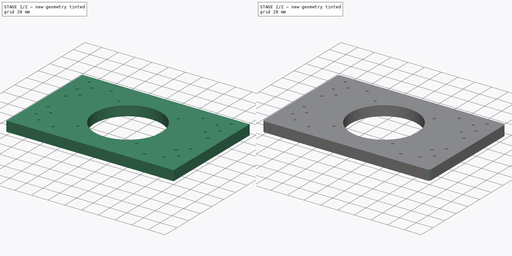
[diagram: build sequence overview — one tinted view per stage of 2, left to right]
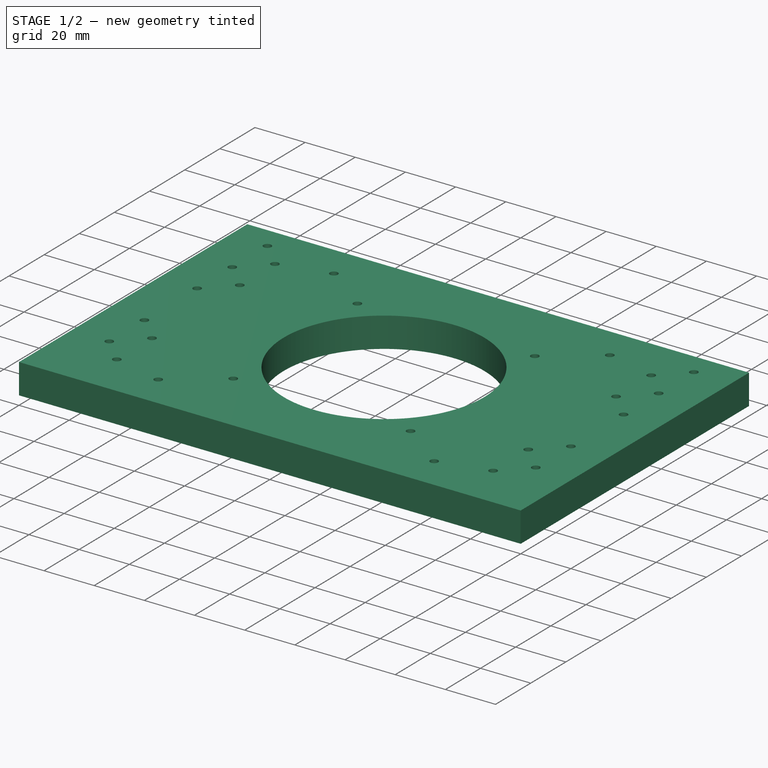
[diagram: stage 1 of 2 — iso view after this stage's code; geometry added in this stage tinted green]
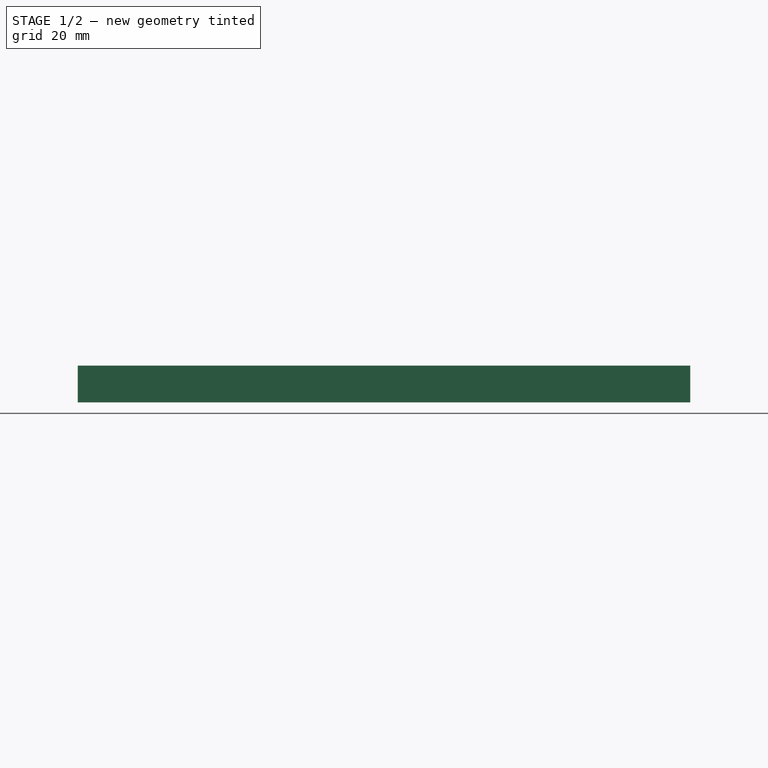
[diagram: stage 1 of 2 — front view after this stage's code; geometry added in this stage tinted green]
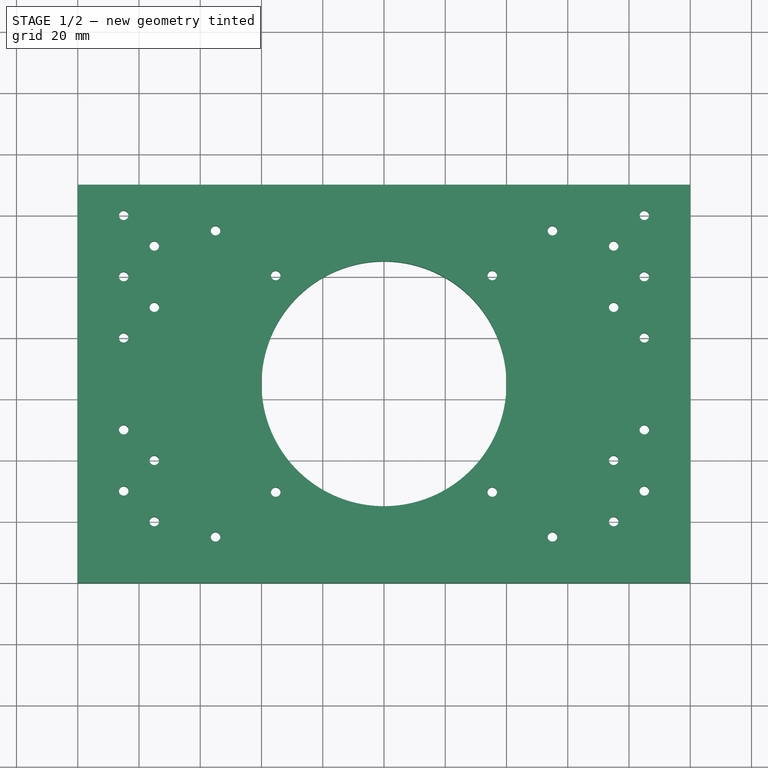
[diagram: stage 1 of 2 — top view after this stage's code; geometry added in this stage tinted green]
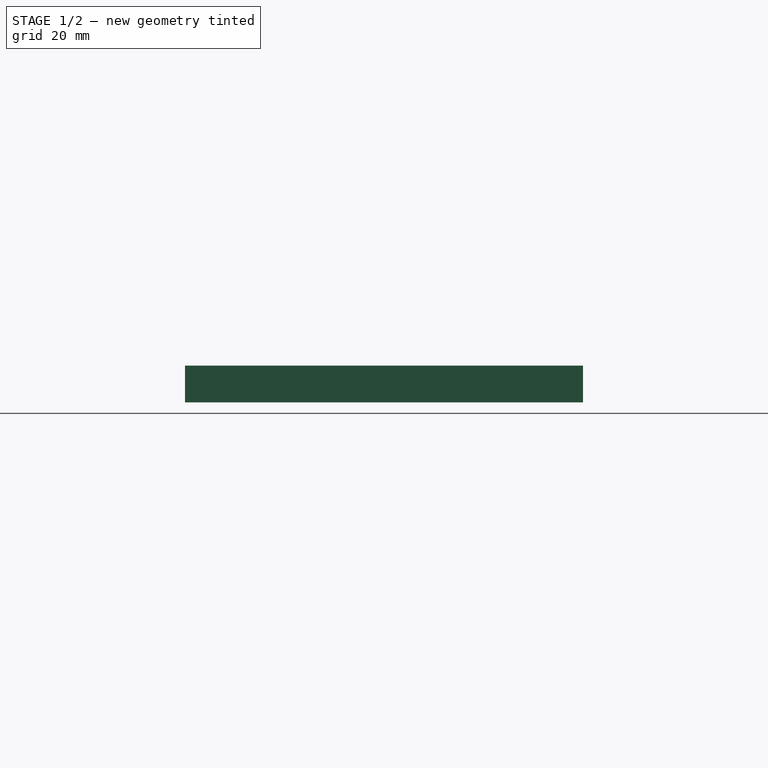
[diagram: stage 1 of 2 — right view after this stage's code; geometry added in this stage tinted green]
FCSTD DOCUMENT  (FreeCAD 0.19R24276 (Git))
Label: Plate_200x130_12_bear_support_d80_v2
License: All rights reserved
LicenseURL: http://en.wikipedia.org/wiki/All_rights_reserved
objects: Sketcher::SketchObject×1, PartDesign::Pad×1, PartDesign::Fillet×1, PartDesign::Body×1
note: 6 computed .brp shape members not serialized (recipe doc carries the construction recipe); baked Part::Feature solids carry a one-line shape summary decoded from their .brp

FEATURE [Sketcher::SketchObject] Sketch  label="Sketch_d80"
  FullyConstrained = false
  MapMode = 5
  Support = -> [XY_Plane]
  sketch-geometry (70):
    g0: LineSegment StartX=0 StartY=0 StartZ=0 EndX=200 EndY=0 EndZ=0
    g1: LineSegment StartX=200 StartY=0 StartZ=0 EndX=200 EndY=130 EndZ=0
    g2: LineSegment StartX=200 StartY=130 StartZ=0 EndX=0 EndY=130 EndZ=0
    g3: LineSegment StartX=0 StartY=130 StartZ=0 EndX=0 EndY=0 EndZ=0
    g4: Circle CenterX=100 CenterY=65 CenterZ=0 NormalX=0 NormalY=0 NormalZ=1 AngleXU=0 Radius=40
    g5: Circle CenterX=45 CenterY=115 CenterZ=0 NormalX=0 NormalY=0 NormalZ=1 AngleXU=0 Radius=1.5625
    g6: Circle CenterX=45 CenterY=15 CenterZ=0 NormalX=0 NormalY=0 NormalZ=1 AngleXU=0 Radius=1.5625
    g7: Circle CenterX=155 CenterY=115 CenterZ=0 NormalX=0 NormalY=0 NormalZ=1 AngleXU=0 Radius=1.5625
    g8: Circle CenterX=155 CenterY=15 CenterZ=0 NormalX=0 NormalY=0 NormalZ=1 AngleXU=0 Radius=1.5625
    g9: LineSegment StartX=45 StartY=15 StartZ=0 EndX=45 EndY=115 EndZ=0
    g10: LineSegment StartX=45 StartY=15 StartZ=0 EndX=155 EndY=15 EndZ=0
    g11: LineSegment StartX=155 StartY=115 StartZ=0 EndX=155 EndY=15 EndZ=0
    g12: LineSegment StartX=45 StartY=115 StartZ=0 EndX=155 EndY=115 EndZ=0
    g13: Circle CenterX=185 CenterY=30 CenterZ=0 NormalX=0 NormalY=0 NormalZ=1 AngleXU=0 Radius=1.5625
    g14: LineSegment StartX=185 StartY=105 StartZ=0 EndX=185 EndY=30 EndZ=0
    g15: Circle CenterX=100 CenterY=65 CenterZ=0 NormalX=0 NormalY=0 NormalZ=1 AngleXU=0 Radius=50
    g16: LineSegment StartX=100 StartY=65 StartZ=0 EndX=135.355 EndY=100.355 EndZ=0
    g17: LineSegment StartX=100 StartY=65 StartZ=0 EndX=64.6447 EndY=29.6447 EndZ=0
    g18: LineSegment StartX=100 StartY=65 StartZ=0 EndX=135.355 EndY=29.6447 EndZ=0
    g19: Circle CenterX=135.355 CenterY=100.355 CenterZ=0 NormalX=0 NormalY=0 NormalZ=1 AngleXU=0 Radius=1.5625
    g20: Circle CenterX=64.6447 CenterY=29.6447 CenterZ=0 NormalX=0 NormalY=0 NormalZ=1 AngleXU=0 Radius=1.5625
    g21: LineSegment StartX=100 StartY=65 StartZ=0 EndX=64.6447 EndY=100.355 EndZ=0
    g22: Circle CenterX=64.6447 CenterY=100.355 CenterZ=0 NormalX=0 NormalY=0 NormalZ=1 AngleXU=0 Radius=1.5625
    g23: Circle CenterX=135.355 CenterY=29.6447 CenterZ=0 NormalX=0 NormalY=0 NormalZ=1 AngleXU=0 Radius=1.5625
    g24: LineSegment StartX=175 StartY=121.301 StartZ=0 EndX=175 EndY=20 EndZ=0
    g25: Circle CenterX=175 CenterY=20 CenterZ=0 NormalX=0 NormalY=0 NormalZ=1 AngleXU=0 Radius=1.5625
    g26: Circle CenterX=175 CenterY=40 CenterZ=0 NormalX=0 NormalY=0 NormalZ=1 AngleXU=0 Radius=1.5625
    g27: Circle CenterX=185 CenterY=50 CenterZ=0 NormalX=0 NormalY=0 NormalZ=1 AngleXU=0 Radius=1.5625
    g28: LineSegment StartX=100 StartY=65 StartZ=0 EndX=228.555 EndY=65 EndZ=0
    g29: Circle CenterX=175 CenterY=90 CenterZ=0 NormalX=0 NormalY=0 NormalZ=1 AngleXU=0 Radius=1.5625
    g30: Circle CenterX=175 CenterY=110 CenterZ=0 NormalX=0 NormalY=0 NormalZ=1 AngleXU=0 Radius=1.5625
    g31: Circle CenterX=185 CenterY=80 CenterZ=0 NormalX=0 NormalY=0 NormalZ=1 AngleXU=0 Radius=1.5625
    g32: Circle CenterX=185 CenterY=100 CenterZ=0 NormalX=0 NormalY=0 NormalZ=1 AngleXU=0 Radius=1.5625
    g33: LineSegment StartX=100 StartY=65 StartZ=0 EndX=100 EndY=146.994 EndZ=0
    g34: Circle CenterX=15 CenterY=30 CenterZ=0 NormalX=0 NormalY=0 NormalZ=1 AngleXU=0 Radius=1.5625
    g35: LineSegment StartX=15 StartY=105 StartZ=0 EndX=15 EndY=30 EndZ=0
    g36: LineSegment StartX=25 StartY=121.301 StartZ=0 EndX=25 EndY=20 EndZ=0
    g37: Circle CenterX=25 CenterY=20 CenterZ=0 NormalX=0 NormalY=0 NormalZ=1 AngleXU=0 Radius=1.5625
    g38: Circle CenterX=25 CenterY=40 CenterZ=0 NormalX=0 NormalY=0 NormalZ=1 AngleXU=0 Radius=1.5625
    g39: Circle CenterX=15 CenterY=50 CenterZ=0 NormalX=0 NormalY=0 NormalZ=1 AngleXU=0 Radius=1.5625
    g40: Circle CenterX=25 CenterY=90 CenterZ=0 NormalX=0 NormalY=0 NormalZ=1 AngleXU=0 Radius=1.5625
    g41: Circle CenterX=25 CenterY=110 CenterZ=0 NormalX=0 NormalY=0 NormalZ=1 AngleXU=0 Radius=1.5625
    g42: Circle CenterX=15 CenterY=80 CenterZ=0 NormalX=0 NormalY=0 NormalZ=1 AngleXU=0 Radius=1.5625
    g43: Circle CenterX=15 CenterY=100 CenterZ=0 NormalX=0 NormalY=0 NormalZ=1 AngleXU=0 Radius=1.5625
    g44: LineSegment StartX=64.6447 StartY=100.355 StartZ=0 EndX=135.355 EndY=100.355 EndZ=0
    g45: Circle CenterX=25 CenterY=180 CenterZ=0 NormalX=0 NormalY=0 NormalZ=1 AngleXU=0 Radius=1.5625
    g46: Circle CenterX=25 CenterY=160 CenterZ=0 NormalX=0 NormalY=0 NormalZ=1 AngleXU=0 Radius=1.5625
    g47: Circle CenterX=15 CenterY=190 CenterZ=0 NormalX=0 NormalY=0 NormalZ=1 AngleXU=0 Radius=1.5625
    g48: Circle CenterX=15 CenterY=170 CenterZ=0 NormalX=0 NormalY=0 NormalZ=1 AngleXU=0 Radius=1.5625
    g49: Circle CenterX=175 CenterY=180 CenterZ=0 NormalX=0 NormalY=0 NormalZ=1 AngleXU=0 Radius=1.5625
    g50: Circle CenterX=175 CenterY=160 CenterZ=0 NormalX=0 NormalY=0 NormalZ=1 AngleXU=0 Radius=1.5625
    g51: Circle CenterX=185 CenterY=190 CenterZ=0 NormalX=0 NormalY=0 NormalZ=1 AngleXU=0 Radius=1.5625
    g52: Circle CenterX=185 CenterY=170 CenterZ=0 NormalX=0 NormalY=0 NormalZ=1 AngleXU=0 Radius=1.5625
    g53: Circle CenterX=15 CenterY=120 CenterZ=0 NormalX=0 NormalY=0 NormalZ=1 AngleXU=0 Radius=1.5625
    g54: Circle CenterX=15 CenterY=150 CenterZ=0 NormalX=0 NormalY=0 NormalZ=1 AngleXU=0 Radius=1.5625
    g55: Circle CenterX=185 CenterY=120 CenterZ=0 NormalX=0 NormalY=0 NormalZ=1 AngleXU=0 Radius=1.5625
    g56: Circle CenterX=185 CenterY=150 CenterZ=0 NormalX=0 NormalY=0 NormalZ=1 AngleXU=0 Radius=1.5625
    g57: LineSegment StartX=40 StartY=130 StartZ=0 EndX=40 EndY=200 EndZ=0
    g58: LineSegment StartX=40 StartY=200 StartZ=0 EndX=0 EndY=200 EndZ=0
    g59: LineSegment StartX=0 StartY=130 StartZ=0 EndX=0 EndY=200 EndZ=0
    g60: LineSegment StartX=160 StartY=200 StartZ=0 EndX=200 EndY=200 EndZ=0
    g61: LineSegment StartX=160 StartY=130 StartZ=0 EndX=160 EndY=200 EndZ=0
    g62: LineSegment StartX=200 StartY=130 StartZ=0 EndX=200 EndY=200 EndZ=0
    g63: LineSegment StartX=0 StartY=0 StartZ=0 EndX=0 EndY=200 EndZ=0
    g64: LineSegment StartX=200 StartY=0 StartZ=0 EndX=200 EndY=200 EndZ=0
    g65: LineSegment StartX=0 StartY=200 StartZ=0 EndX=40 EndY=200 EndZ=0
    g66: LineSegment StartX=160 StartY=200 StartZ=0 EndX=200 EndY=200 EndZ=0
    g67: LineSegment StartX=40 StartY=200 StartZ=0 EndX=40 EndY=130 EndZ=0
    g68: LineSegment StartX=160 StartY=130 StartZ=0 EndX=160 EndY=200 EndZ=0
    g69: LineSegment StartX=40 StartY=130 StartZ=0 EndX=160 EndY=130 EndZ=0
  constraints (184):
    c: Coincident(g0,g1)
    c: Coincident(g1,g2)
    c: Coincident(g2,g3)
    c: Coincident(g3,g0)
    c: Horizontal(g0)
    c: Horizontal(g2)
    c: Vertical(g1)
    c: Vertical(g3)
    c: Coincident(g0,g-1)
    c: DistanceY(g1,g1) = 130
    c: DistanceX(g0,g0) = 200
    c: Symmetric(g2,g0,g4)
    c: Diameter(g4) = 80
    c: DistanceX(g0,g6) = 45
    c: Coincident(g9,g6)
    c: Coincident(g9,g5)
    c: Vertical(g9)
    c: Coincident(g10,g6)
    c: Coincident(g10,g8)
    c: Horizontal(g10)
    c: Coincident(g11,g7)
    c: Coincident(g11,g8)
    c: Vertical(g11)
    c: Coincident(g12,g5)
    c: Coincident(g12,g7)
    c: Horizontal(g12)
    c: Symmetric(g7,g6,g4)
    c: DistanceY(g0,g6) = 15
    c: Coincident(g14,g13)
    c: Vertical(g14)
    c: Equal(g5,g6)
    c: Equal(g5,g8)
    c: Equal(g5,g7)
    c: DistanceX(g13,g0) = 15
    c: Diameter(g15) = 100
    c: Coincident(g16,g4)
    c: Coincident(g17,g4)
    c: Coincident(g18,g4)
    c: Parallel(g17,g16)
    c: Angle(g17,g18) = 1.5708
    c: PointOnObject(g18,g15)
    c: PointOnObject(g17,g15)
    c: PointOnObject(g16,g15)
    c: Coincident(g19,g16)
    c: Coincident(g20,g17)
    c: Coincident(g21,g4)
    c: Parallel(g18,g21)
    c: PointOnObject(g21,g15)
    c: Coincident(g23,g18)
    c: Diameter(g23) = 3.125
    c: Equal(g23,g19)
    c: Equal(g23,g22)
    c: Equal(g23,g20)
    c: Vertical(g24)
    c: DistanceX(g24,g0) = 25
    c: DistanceY(g0,g13) = 30
    c: Coincident(g25,g24)
    c: Equal(g13,g25)
    c: DistanceY(g0,g24) = 20
    c: PointOnObject(g26,g24)
    c: Equal(g25,g26)
    c: DistanceY(g24,g26) = 20
    c: PointOnObject(g27,g14)
    c: Equal(g26,g27)
    c: DistanceY(g13,g27) = 20
    c: Coincident(g28,g4)
    c: Horizontal(g28)
    c: Equal(g32,g30)
    c: Equal(g30,g29)
    c: Equal(g29,g31)
    c: Coincident(g33,g4)
    c: Vertical(g33)
    c: Coincident(g35,g34)
    c: Vertical(g35)
    c: Vertical(g36)
    c: Coincident(g37,g36)
    c: Equal(g34,g37)
    c: PointOnObject(g38,g36)
    c: Equal(g37,g38)
    c: PointOnObject(g39,g35)
    c: Equal(g38,g39)
    c: Equal(g43,g41)
    c: Equal(g41,g40)
    c: Equal(g40,g42)
    c: Diameter(g25) = 3.125
    c: Equal(g31,g27)
    c: Equal(g41,g30)
    c: Equal(g40,g38)
    c: Equal(g41,g5)
    c: Coincident(g22,g21)
    c: Coincident(g15,g4)
    c: Coincident(g44,g22)
    c: Coincident(g44,g19)
    c: Horizontal(g44)
    c: Vertical(g31,g32)
    c: Vertical(g32,g27)
    c: Vertical(g26,g29)
    c: Vertical(g29,g30)
    c: DistanceY(g27,g31) = 30
    c: DistanceY(g31,g32) = 20
    c: DistanceY(g29,g30) = 20
    c: DistanceY(g31,g29) = 10
    c: Horizontal(g30,g41)
    c: Horizontal(g43,g32)
    c: Horizontal(g40,g29)
    c: Horizontal(g42,g31)
    c: Horizontal(g39,g27)
    c: Horizontal(g38,g26)
    c: Horizontal(g34,g13)
    c: Horizontal(g25,g37)
    c: DistanceX(g0,g34) = 15
    c: DistanceX(g0,g37) = 25
    c: Vertical(g39,g42)
    c: Vertical(g42,g43)
    c: Vertical(g38,g40)
    c: Vertical(g40,g41)
    c: Equal(g52,g50)
    c: Equal(g50,g49)
    c: Equal(g49,g51)
    c: Equal(g48,g46)
    c: Equal(g46,g45)
    c: Equal(g45,g47)
    c: Equal(g46,g50)
    c: Equal(g53,g43)
    c: Vertical(g43,g53)
    c: DistanceY(g43,g53) = 20
    c: Equal(g53,g54)
    c: Vertical(g53,g54)
    c: Vertical(g54,g48)
    c: Vertical(g48,g47)
    c: Vertical(g46,g45)
    c: Vertical(g40,g45)
    c: DistanceY(g53,g54) = 30
    c: DistanceY(g54,g48) = 20
    c: DistanceY(g48,g47) = 20
    c: DistanceY(g54,g46) = 10
    c: DistanceY(g46,g45) = 20
    c: Equal(g54,g46)
    c: Equal(g30,g55)
    c: Vertical(g55,g32)
    c: DistanceY(g30,g55) = 10
    c: Vertical(g50,g49)
    c: Vertical(g49,g30)
    c: Vertical(g55,g52)
    c: Vertical(g52,g51)
    c: Equal(g50,g56)
    c: Vertical(g56,g52)
    c: Horizontal(g54,g56)
    c: Horizontal(g46,g50)
    c: Horizontal(g48,g52)
    c: Horizontal(g45,g49)
    c: Horizontal(g47,g51)
    c: Vertical(g57)
    c: DistanceY(g45,g57) = 20
    c: Coincident(g58,g57)
    c: Horizontal(g58)
    c: Coincident(g59,g2)
    c: Coincident(g59,g58)
    c: Vertical(g59)
    c: PointOnObject(g57,g2)
    c: DistanceX(g58,g58) = 40
    c: Vertical(g61)
    c: Coincident(g60,g61)
    c: Horizontal(g60)
    c: Coincident(g62,g1)
    c: Coincident(g62,g60)
    c: Vertical(g62)
    c: Horizontal(g60,g57)
    c: Equal(g58,g60)
    c: Horizontal(g57,g61)
    c: Coincident(g63,g0)
    c: Coincident(g64,g0)
    c: Coincident(g64,g60)
    c: Coincident(g63,g58)
    c: Coincident(g65,g63)
    c: Coincident(g66,g60)
    c: Coincident(g64,g66)
    c: Coincident(g57,g65)
    c: Coincident(g67,g65)
    c: Coincident(g68,g61)
    c: Coincident(g69,g57)
    c: Coincident(g67,g69)
    c: Coincident(g69,g68)
    c: Coincident(g68,g66)
FEATURE [PartDesign::Pad] Pad  label="Pad_h12"
  Direction = (1,1,1)
  Length = 12
  Length2 = 100
  Profile = -> Sketch
  Type = 0
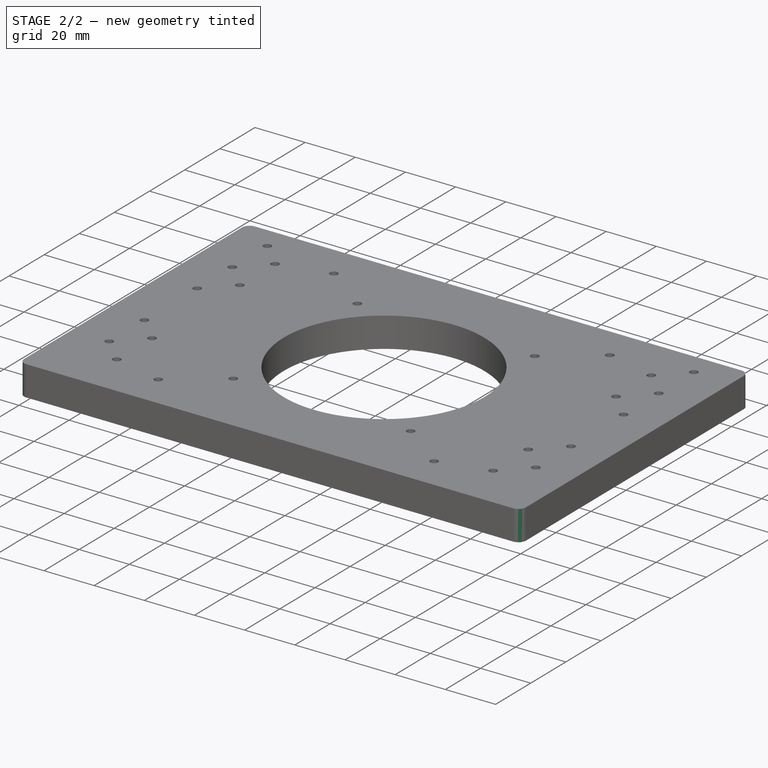
[diagram: stage 2 of 2 — iso view after this stage's code; geometry added in this stage tinted green]
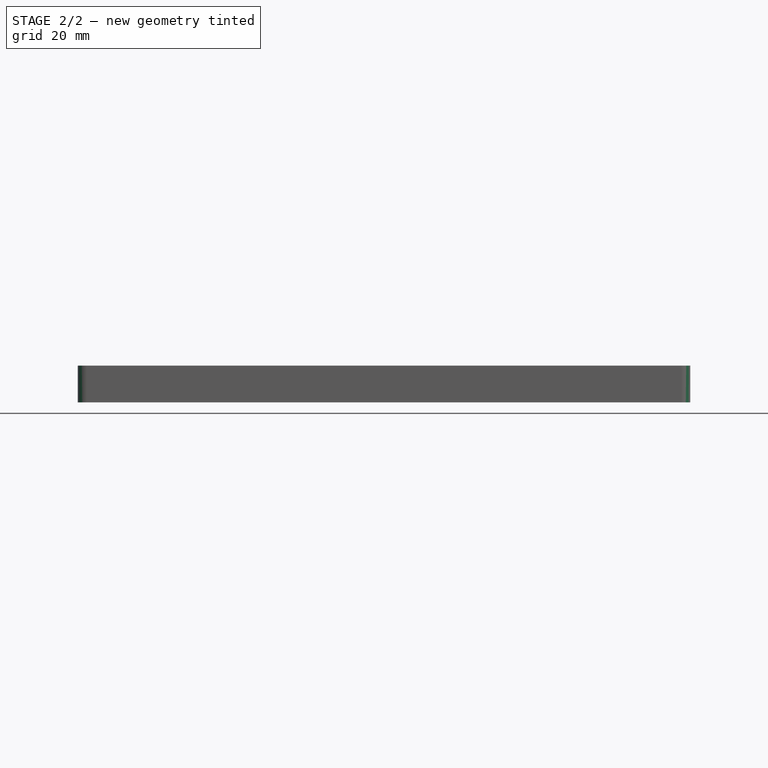
[diagram: stage 2 of 2 — front view after this stage's code; geometry added in this stage tinted green]
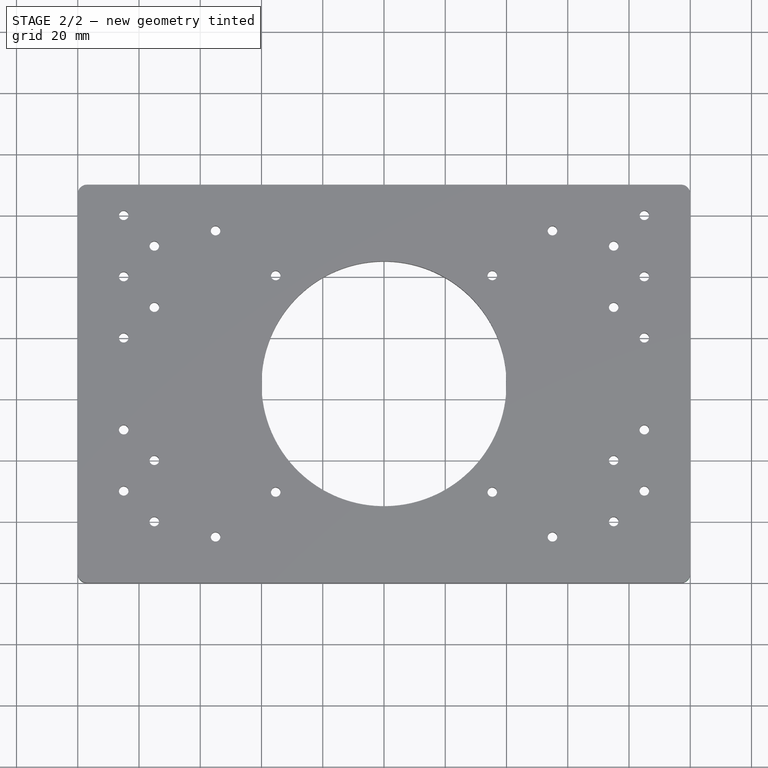
[diagram: stage 2 of 2 — top view after this stage's code; geometry added in this stage tinted green]
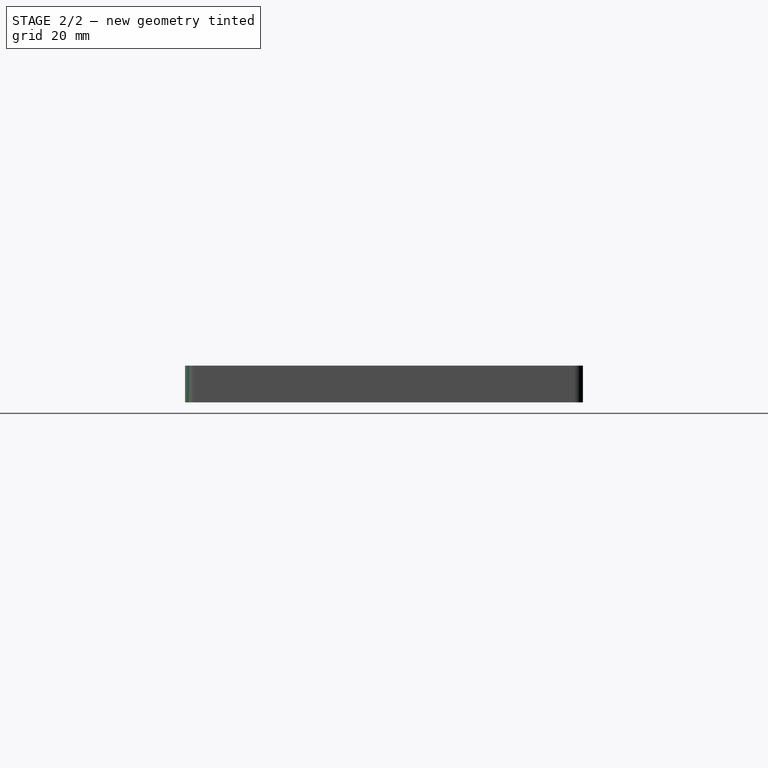
[diagram: stage 2 of 2 — right view after this stage's code; geometry added in this stage tinted green]
FEATURE [PartDesign::Fillet] Fillet
  Base = -> Pad [Edge5,Edge8,Edge2,Edge1]
  BaseFeature = -> Pad
  Radius = 3
  SupportTransform = false
FEATURE [PartDesign::Body] Body
  Group = -> [Sketch,Pad,Fillet]
  Origin = -> Origin
  Tip = -> Fillet
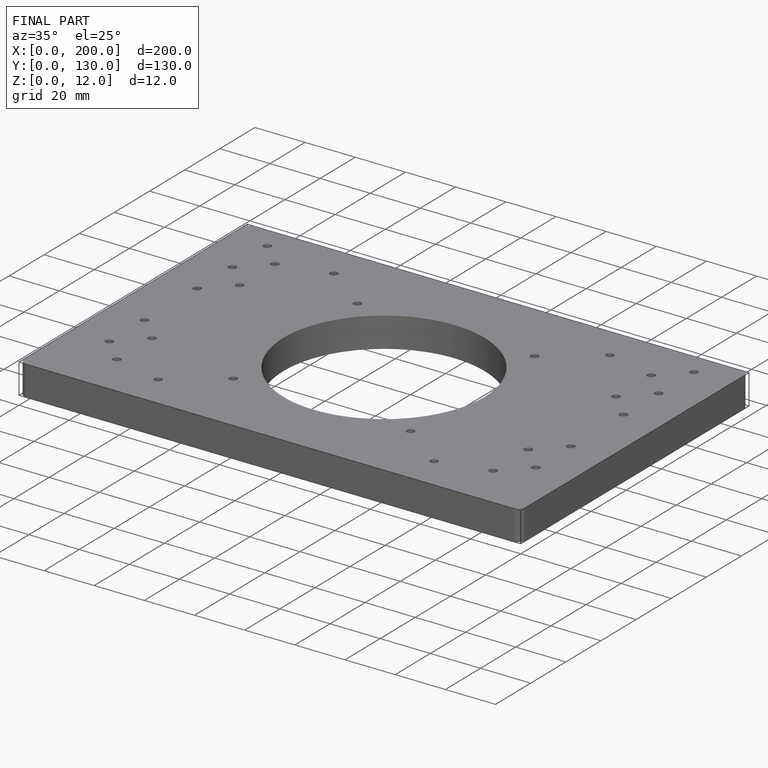
[diagram: finished part — iso view with bounding-box wireframe]
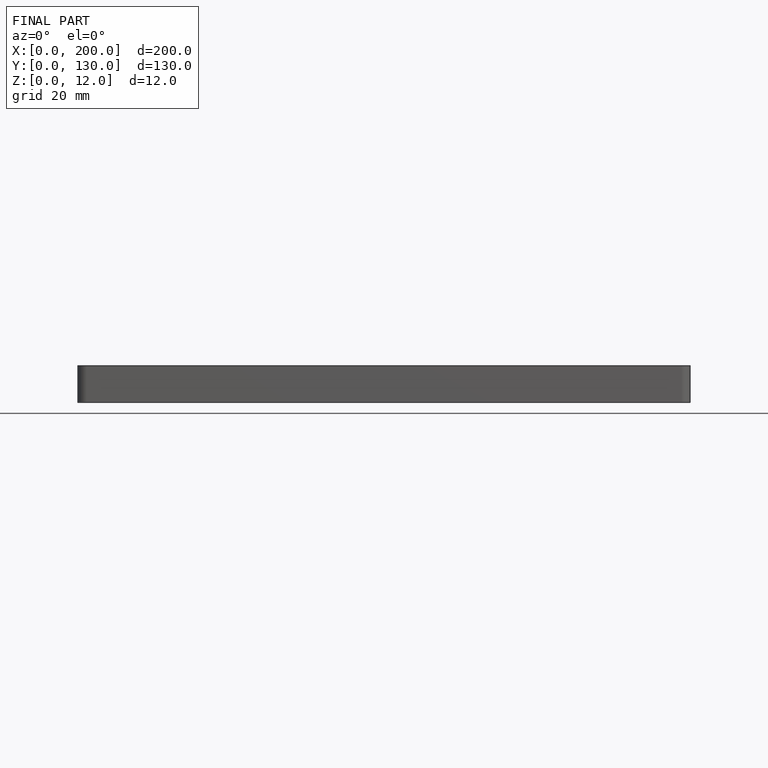
[diagram: finished part — front view with bounding-box wireframe]
